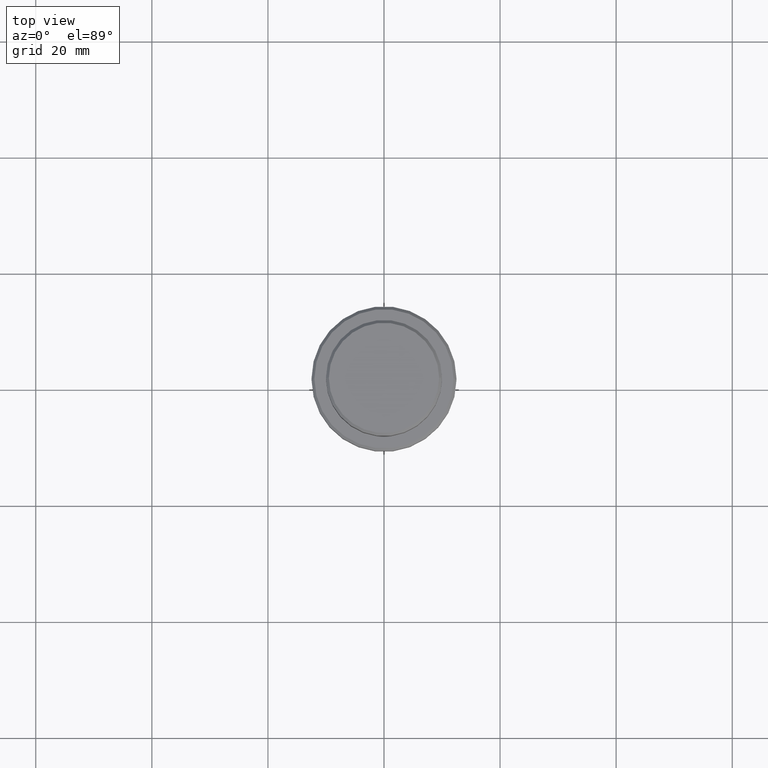
[diagram: clean part render]
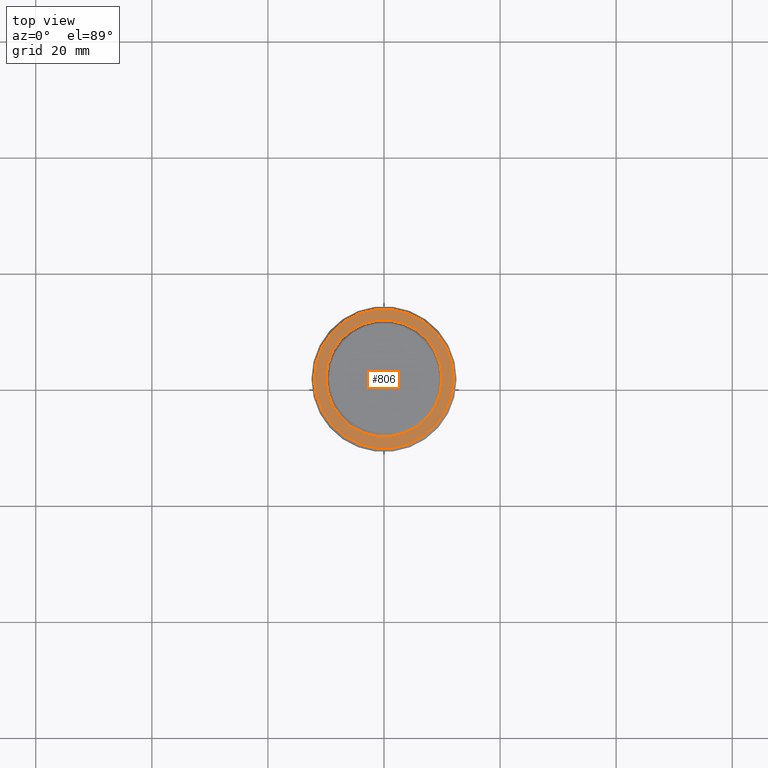
[diagram: same view with one face highlighted and labeled with its STEP entity id]
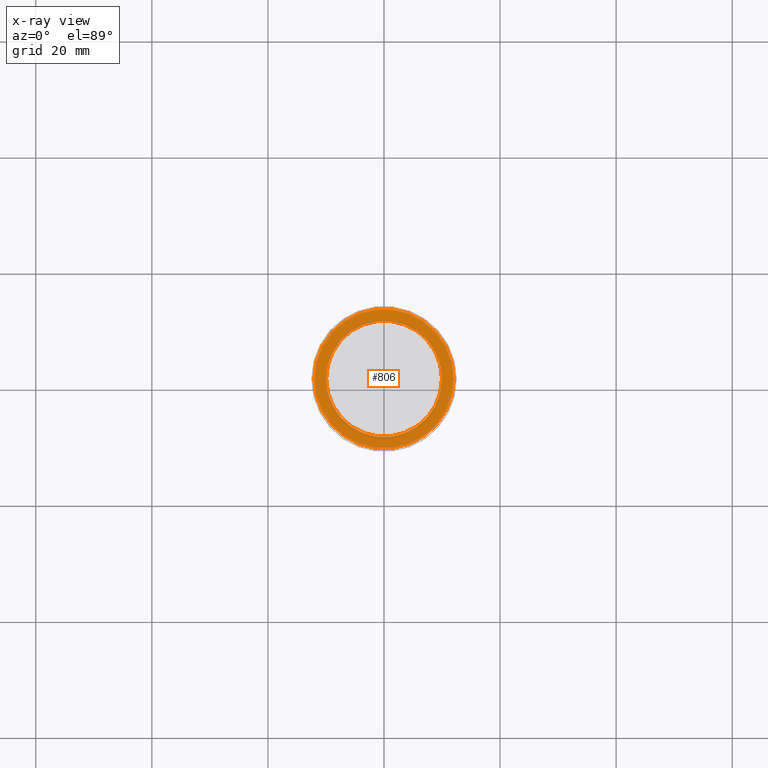
[diagram: x-ray of the same camera — body ghosted, the highlighted face saturated]
A machine part, top view. The second image highlights one B-rep face of the part: STEP entity #806.
The next image is the same camera in x-ray: the body ghosted, the highlighted face saturated — about 0% of this face is hidden behind the body in this view.
In plain terms, the highlighted planar face has unit normal (0, -0, 1).
Its self-contained STEP definition (entity closure, byte-faithful):
#12 = CARTESIAN_POINT ( 'NONE',  ( 0.000000000000000000, 0.000000000000000000, -9.000000000000000000 ) ) ;
#21 = ORIENTED_EDGE ( 'NONE', *, *, #465, .T. ) ;
#70 = VERTEX_POINT ( 'NONE', #618 ) ;
#105 = ORIENTED_EDGE ( 'NONE', *, *, #796, .T. ) ;
#107 = CARTESIAN_POINT ( 'NONE',  ( 0.000000000000000000, 0.000000000000000000, -9.000000000000000000 ) ) ;
#139 = VERTEX_POINT ( 'NONE', #1187 ) ;
#144 = AXIS2_PLACEMENT_3D ( 'NONE', #645, #974, #209 ) ;
#170 = PLANE ( 'NONE',  #374 ) ;
#183 = DIRECTION ( 'NONE',  ( 0.000000000000000000, 0.000000000000000000, -1.000000000000000000 ) ) ;
#190 = DIRECTION ( 'NONE',  ( 0.000000000000000000, -0.000000000000000000, 1.000000000000000000 ) ) ;
#209 = DIRECTION ( 'NONE',  ( 1.000000000000000000, 0.000000000000000000, 0.000000000000000000 ) ) ;
#296 = VERTEX_POINT ( 'NONE', #585 ) ;
#335 = EDGE_LOOP ( 'NONE', ( #105, #21 ) ) ;
#374 = AXIS2_PLACEMENT_3D ( 'NONE', #833, #190, #511 ) ;
#407 = CARTESIAN_POINT ( 'NONE',  ( 0.000000000000000000, 0.000000000000000000, -9.000000000000000000 ) ) ;
#465 = EDGE_CURVE ( 'NONE', #296, #139, #1190, .T. ) ;
#472 = DIRECTION ( 'NONE',  ( -0.000000000000000000, -0.000000000000000000, 1.000000000000000000 ) ) ;
#497 = FACE_OUTER_BOUND ( 'NONE', #1208, .T. ) ;
#511 = DIRECTION ( 'NONE',  ( 1.000000000000000000, 0.000000000000000000, 0.000000000000000000 ) ) ;
#583 = ORIENTED_EDGE ( 'NONE', *, *, #666, .T. ) ;
#585 = CARTESIAN_POINT ( 'NONE',  ( -9.999999999999992895, 1.224646799147352468E-15, -9.000000000000000000 ) ) ;
#618 = CARTESIAN_POINT ( 'NONE',  ( -12.00000000000002487, 0.000000000000000000, -9.000000000000000000 ) ) ;
#645 = CARTESIAN_POINT ( 'NONE',  ( 0.000000000000000000, 0.000000000000000000, -9.000000000000000000 ) ) ;
#666 = EDGE_CURVE ( 'NONE', #1387, #70, #1262, .T. ) ;
#691 = DIRECTION ( 'NONE',  ( 1.000000000000000000, 0.000000000000000000, 0.000000000000000000 ) ) ;
#759 = CARTESIAN_POINT ( 'NONE',  ( 12.00000000000002487, 1.500192328955509115E-15, -9.000000000000000000 ) ) ;
#796 = EDGE_CURVE ( 'NONE', #139, #296, #985, .T. ) ;
#806 = ADVANCED_FACE ( 'NONE', ( #497, #1290 ), #170, .T. ) ;
#830 = AXIS2_PLACEMENT_3D ( 'NONE', #107, #858, #1100 ) ;
#833 = CARTESIAN_POINT ( 'NONE',  ( 0.000000000000000000, 9.499999999999992895, -9.000000000000000000 ) ) ;
#858 = DIRECTION ( 'NONE',  ( -0.000000000000000000, -0.000000000000000000, 1.000000000000000000 ) ) ;
#917 = AXIS2_PLACEMENT_3D ( 'NONE', #407, #183, #1277 ) ;
#974 = DIRECTION ( 'NONE',  ( 0.000000000000000000, 0.000000000000000000, -1.000000000000000000 ) ) ;
#985 = CIRCLE ( 'NONE', #917, 9.999999999999992895 ) ;
#1005 = AXIS2_PLACEMENT_3D ( 'NONE', #12, #472, #691 ) ;
#1100 = DIRECTION ( 'NONE',  ( 1.000000000000000000, 0.000000000000000000, 0.000000000000000000 ) ) ;
#1145 = ORIENTED_EDGE ( 'NONE', *, *, #1384, .T. ) ;
#1187 = CARTESIAN_POINT ( 'NONE',  ( 9.999999999999992895, 0.000000000000000000, -9.000000000000000000 ) ) ;
#1190 = CIRCLE ( 'NONE', #144, 9.999999999999992895 ) ;
#1208 = EDGE_LOOP ( 'NONE', ( #1145, #583 ) ) ;
#1262 = CIRCLE ( 'NONE', #1005, 12.00000000000002487 ) ;
#1277 = DIRECTION ( 'NONE',  ( 1.000000000000000000, 0.000000000000000000, 0.000000000000000000 ) ) ;
#1287 = CIRCLE ( 'NONE', #830, 12.00000000000002487 ) ;
#1290 = FACE_BOUND ( 'NONE', #335, .T. ) ;
#1384 = EDGE_CURVE ( 'NONE', #70, #1387, #1287, .T. ) ;
#1387 = VERTEX_POINT ( 'NONE', #759 ) ;